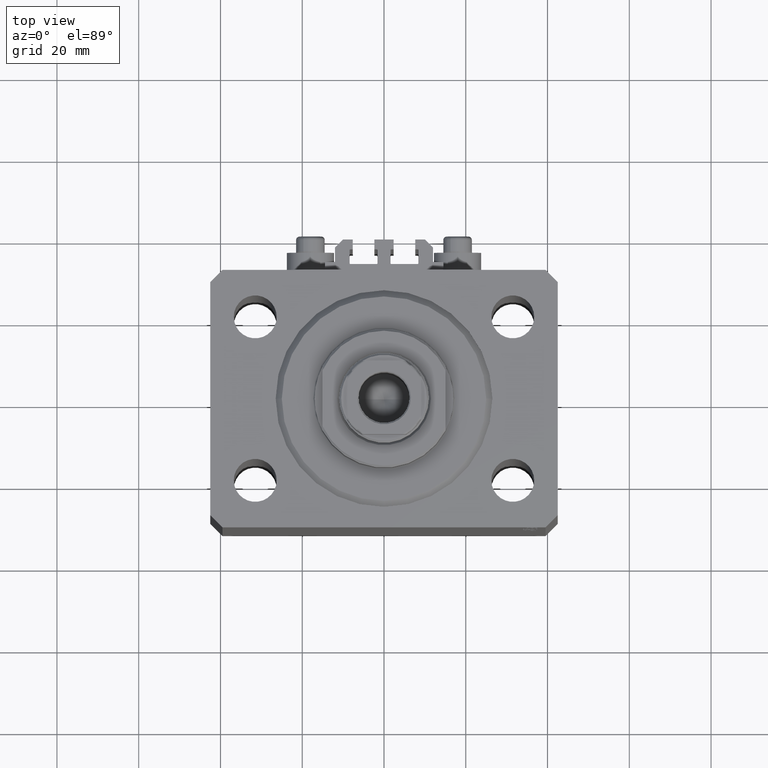
[diagram: clean part render]
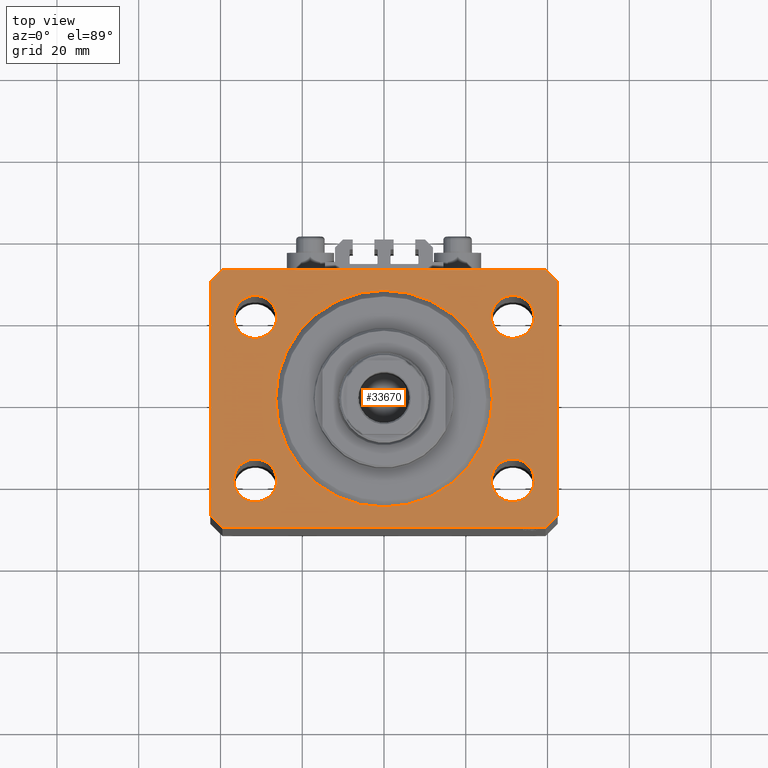
[diagram: same view with one face highlighted and labeled with its STEP entity id]
A machine part, top view. The second image highlights one B-rep face of the part: STEP entity #33670.
In plain terms, the highlighted planar face has unit normal (0, 0, 1).
Its self-contained STEP definition (entity closure, byte-faithful):
#278 = DIRECTION ( 'NONE',  ( 1.000000000000000000, 0.000000000000000000, 0.000000000000000000 ) ) ;
#806 = CARTESIAN_POINT ( 'NONE',  ( -42.50000000000000000, 28.50000000000000000, 0.000000000000000000 ) ) ;
#975 = VERTEX_POINT ( 'NONE', #19209 ) ;
#1369 = EDGE_CURVE ( 'NONE', #34641, #36461, #13922, .T. ) ;
#1422 = VECTOR ( 'NONE', #1911, 1000.000000000000000 ) ;
#1576 = ORIENTED_EDGE ( 'NONE', *, *, #1369, .F. ) ;
#1911 = DIRECTION ( 'NONE',  ( 0.7071067811865471286, -0.7071067811865479058, 0.000000000000000000 ) ) ;
#1950 = CARTESIAN_POINT ( 'NONE',  ( 36.75000000000000000, 19.99999999999999289, 0.000000000000000000 ) ) ;
#2210 = ORIENTED_EDGE ( 'NONE', *, *, #17421, .T. ) ;
#2278 = ORIENTED_EDGE ( 'NONE', *, *, #9374, .F. ) ;
#2352 = LINE ( 'NONE', #39198, #5549 ) ;
#2813 = DIRECTION ( 'NONE',  ( 1.000000000000000000, 0.000000000000000000, 0.000000000000000000 ) ) ;
#2986 = DIRECTION ( 'NONE',  ( 8.886653596232072440E-15, 1.000000000000000000, 0.000000000000000000 ) ) ;
#3289 = CIRCLE ( 'NONE', #32343, 26.50000000000000355 ) ;
#3350 = FACE_BOUND ( 'NONE', #17848, .T. ) ;
#4057 = FACE_BOUND ( 'NONE', #31509, .T. ) ;
#4231 = LINE ( 'NONE', #29612, #37441 ) ;
#4646 = EDGE_CURVE ( 'NONE', #46242, #45824, #39242, .T. ) ;
#4724 = DIRECTION ( 'NONE',  ( 1.000000000000000000, 0.000000000000000000, 0.000000000000000000 ) ) ;
#4790 = EDGE_CURVE ( 'NONE', #38186, #14818, #18075, .T. ) ;
#5080 = EDGE_CURVE ( 'NONE', #27924, #37048, #42216, .T. ) ;
#5549 = VECTOR ( 'NONE', #2813, 1000.000000000000000 ) ;
#6009 = EDGE_CURVE ( 'NONE', #31123, #39874, #2352, .T. ) ;
#6158 = AXIS2_PLACEMENT_3D ( 'NONE', #43815, #30179, #278 ) ;
#6864 = EDGE_CURVE ( 'NONE', #24537, #7575, #3289, .T. ) ;
#7453 = CARTESIAN_POINT ( 'NONE',  ( 31.49999999999999289, -20.00000000000000355, 0.000000000000000000 ) ) ;
#7560 = ORIENTED_EDGE ( 'NONE', *, *, #34549, .F. ) ;
#7575 = VERTEX_POINT ( 'NONE', #11613 ) ;
#7647 = DIRECTION ( 'NONE',  ( 0.000000000000000000, 0.000000000000000000, 1.000000000000000000 ) ) ;
#7697 = CARTESIAN_POINT ( 'NONE',  ( -26.24999999999999289, -20.00000000000000355, 0.000000000000000000 ) ) ;
#8465 = CARTESIAN_POINT ( 'NONE',  ( 42.50000000000000711, -28.50000000000000355, 0.000000000000000000 ) ) ;
#9064 = ORIENTED_EDGE ( 'NONE', *, *, #13726, .T. ) ;
#9244 = CIRCLE ( 'NONE', #11544, 5.249999999999997335 ) ;
#9253 = EDGE_LOOP ( 'NONE', ( #2278, #1576 ) ) ;
#9374 = EDGE_CURVE ( 'NONE', #36461, #34641, #20185, .T. ) ;
#9717 = DIRECTION ( 'NONE',  ( 1.000000000000000000, 0.000000000000000000, 0.000000000000000000 ) ) ;
#10858 = DIRECTION ( 'NONE',  ( 0.7071067811865483499, 0.7071067811865466846, 0.000000000000000000 ) ) ;
#10961 = CARTESIAN_POINT ( 'NONE',  ( 39.50000000000056843, 31.50000000000000000, 0.000000000000000000 ) ) ;
#11250 = PLANE ( 'NONE',  #30397 ) ;
#11544 = AXIS2_PLACEMENT_3D ( 'NONE', #7453, #34014, #36679 ) ;
#11613 = CARTESIAN_POINT ( 'NONE',  ( -26.50000000000000355, 3.245314017740486554E-15, 0.000000000000000000 ) ) ;
#11827 = DIRECTION ( 'NONE',  ( 0.000000000000000000, -1.000000000000000000, 0.000000000000000000 ) ) ;
#12138 = AXIS2_PLACEMENT_3D ( 'NONE', #20282, #37535, #4724 ) ;
#12441 = ORIENTED_EDGE ( 'NONE', *, *, #12953, .T. ) ;
#12953 = EDGE_CURVE ( 'NONE', #14818, #40566, #45949, .T. ) ;
#13726 = EDGE_CURVE ( 'NONE', #40566, #975, #29077, .T. ) ;
#13922 = CIRCLE ( 'NONE', #40674, 5.250000000000000888 ) ;
#14101 = DIRECTION ( 'NONE',  ( 1.000000000000000000, 0.000000000000000000, 0.000000000000000000 ) ) ;
#14818 = VERTEX_POINT ( 'NONE', #42670 ) ;
#15216 = ORIENTED_EDGE ( 'NONE', *, *, #19259, .T. ) ;
#16077 = CIRCLE ( 'NONE', #6158, 5.249999999999997335 ) ;
#16211 = AXIS2_PLACEMENT_3D ( 'NONE', #32303, #46907, #14101 ) ;
#17034 = EDGE_CURVE ( 'NONE', #7575, #24537, #32768, .T. ) ;
#17257 = CARTESIAN_POINT ( 'NONE',  ( -36.75000000000000000, 19.99999999999999645, 0.000000000000000000 ) ) ;
#17284 = CIRCLE ( 'NONE', #44014, 5.250000000000000888 ) ;
#17421 = EDGE_CURVE ( 'NONE', #39874, #20227, #22341, .T. ) ;
#17848 = EDGE_LOOP ( 'NONE', ( #26863, #18890 ) ) ;
#18075 = LINE ( 'NONE', #37931, #18495 ) ;
#18327 = CARTESIAN_POINT ( 'NONE',  ( 39.50000000000000711, -31.50000000000000000, 0.000000000000000000 ) ) ;
#18495 = VECTOR ( 'NONE', #38167, 1000.000000000000000 ) ;
#18890 = ORIENTED_EDGE ( 'NONE', *, *, #17034, .F. ) ;
#18975 = CIRCLE ( 'NONE', #40362, 5.249999999999997335 ) ;
#19156 = CARTESIAN_POINT ( 'NONE',  ( 36.74999999999999289, -20.00000000000000355, 0.000000000000000000 ) ) ;
#19209 = CARTESIAN_POINT ( 'NONE',  ( -42.50000000000000000, -28.50000000000000000, 0.000000000000000000 ) ) ;
#19256 = VERTEX_POINT ( 'NONE', #39369 ) ;
#19259 = EDGE_CURVE ( 'NONE', #20227, #40767, #46082, .T. ) ;
#20185 = CIRCLE ( 'NONE', #25543, 5.250000000000000888 ) ;
#20227 = VERTEX_POINT ( 'NONE', #8465 ) ;
#20282 = CARTESIAN_POINT ( 'NONE',  ( 0.000000000000000000, 0.000000000000000000, 0.000000000000000000 ) ) ;
#20568 = LINE ( 'NONE', #34714, #1422 ) ;
#21592 = ORIENTED_EDGE ( 'NONE', *, *, #26127, .F. ) ;
#21662 = CARTESIAN_POINT ( 'NONE',  ( -36.74999999999999289, -20.00000000000000355, 0.000000000000000000 ) ) ;
#22341 = LINE ( 'NONE', #36248, #41195 ) ;
#24081 = CARTESIAN_POINT ( 'NONE',  ( -31.49999999999999289, -20.00000000000000355, 0.000000000000000000 ) ) ;
#24135 = CARTESIAN_POINT ( 'NONE',  ( 0.000000000000000000, 0.000000000000000000, 0.000000000000000000 ) ) ;
#24367 = ORIENTED_EDGE ( 'NONE', *, *, #6009, .T. ) ;
#24537 = VERTEX_POINT ( 'NONE', #31031 ) ;
#25508 = EDGE_LOOP ( 'NONE', ( #42024, #7560 ) ) ;
#25543 = AXIS2_PLACEMENT_3D ( 'NONE', #26343, #44746, #32820 ) ;
#25592 = EDGE_LOOP ( 'NONE', ( #21592, #31178 ) ) ;
#25840 = FACE_BOUND ( 'NONE', #9253, .T. ) ;
#26127 = EDGE_CURVE ( 'NONE', #45824, #46242, #17284, .T. ) ;
#26343 = CARTESIAN_POINT ( 'NONE',  ( -31.50000000000000000, 19.99999999999999645, 0.000000000000000000 ) ) ;
#26407 = DIRECTION ( 'NONE',  ( -0.7071067811865471286, -0.7071067811865479058, 0.000000000000000000 ) ) ;
#26863 = ORIENTED_EDGE ( 'NONE', *, *, #6864, .F. ) ;
#27563 = DIRECTION ( 'NONE',  ( 1.000000000000000000, 0.000000000000000000, 0.000000000000000000 ) ) ;
#27801 = CARTESIAN_POINT ( 'NONE',  ( 31.50000000000000000, 19.99999999999999289, 0.000000000000000000 ) ) ;
#27924 = VERTEX_POINT ( 'NONE', #29791 ) ;
#28414 = CARTESIAN_POINT ( 'NONE',  ( -42.50000000000000000, 28.50000000000000000, 0.000000000000000000 ) ) ;
#29077 = LINE ( 'NONE', #806, #47156 ) ;
#29612 = CARTESIAN_POINT ( 'NONE',  ( 42.50000000000051870, 28.49999999999995381, 0.000000000000000000 ) ) ;
#29669 = FACE_BOUND ( 'NONE', #25508, .T. ) ;
#29791 = CARTESIAN_POINT ( 'NONE',  ( 26.24999999999999645, -20.00000000000000355, 0.000000000000000000 ) ) ;
#30109 = CARTESIAN_POINT ( 'NONE',  ( -26.25000000000000000, 19.99999999999999645, 0.000000000000000000 ) ) ;
#30179 = DIRECTION ( 'NONE',  ( 0.000000000000000000, 0.000000000000000000, 1.000000000000000000 ) ) ;
#30397 = AXIS2_PLACEMENT_3D ( 'NONE', #40437, #7647, #44244 ) ;
#31031 = CARTESIAN_POINT ( 'NONE',  ( 26.50000000000000355, 0.000000000000000000, 0.000000000000000000 ) ) ;
#31123 = VERTEX_POINT ( 'NONE', #32816 ) ;
#31178 = ORIENTED_EDGE ( 'NONE', *, *, #4646, .F. ) ;
#31509 = EDGE_LOOP ( 'NONE', ( #40829, #39900 ) ) ;
#32303 = CARTESIAN_POINT ( 'NONE',  ( 31.49999999999999289, -20.00000000000000355, 0.000000000000000000 ) ) ;
#32343 = AXIS2_PLACEMENT_3D ( 'NONE', #24135, #38519, #38739 ) ;
#32692 = CARTESIAN_POINT ( 'NONE',  ( -31.50000000000000000, 19.99999999999999645, 0.000000000000000000 ) ) ;
#32768 = CIRCLE ( 'NONE', #12138, 26.50000000000000355 ) ;
#32816 = CARTESIAN_POINT ( 'NONE',  ( -39.50000000000000711, -31.50000000000000000, 0.000000000000000000 ) ) ;
#32820 = DIRECTION ( 'NONE',  ( 1.000000000000000000, 0.000000000000000000, 0.000000000000000000 ) ) ;
#33670 = ADVANCED_FACE ( 'NONE', ( #3350, #44008, #4057, #29669, #25840, #39968 ), #11250, .T. ) ;
#34014 = DIRECTION ( 'NONE',  ( 0.000000000000000000, 0.000000000000000000, 1.000000000000000000 ) ) ;
#34549 = EDGE_CURVE ( 'NONE', #19256, #46629, #18975, .T. ) ;
#34573 = AXIS2_PLACEMENT_3D ( 'NONE', #24081, #38687, #9717 ) ;
#34641 = VERTEX_POINT ( 'NONE', #17257 ) ;
#34714 = CARTESIAN_POINT ( 'NONE',  ( -42.50000000000000000, -28.50000000000000000, 0.000000000000000000 ) ) ;
#34851 = CARTESIAN_POINT ( 'NONE',  ( 42.50000000000000711, -28.50000000000000355, 0.000000000000000000 ) ) ;
#35007 = DIRECTION ( 'NONE',  ( 1.000000000000000000, 0.000000000000000000, 0.000000000000000000 ) ) ;
#36248 = CARTESIAN_POINT ( 'NONE',  ( 39.50000000000000711, -31.50000000000000000, 0.000000000000000000 ) ) ;
#36327 = EDGE_CURVE ( 'NONE', #975, #31123, #20568, .T. ) ;
#36461 = VERTEX_POINT ( 'NONE', #30109 ) ;
#36679 = DIRECTION ( 'NONE',  ( 1.000000000000000000, 0.000000000000000000, 0.000000000000000000 ) ) ;
#37048 = VERTEX_POINT ( 'NONE', #19156 ) ;
#37441 = VECTOR ( 'NONE', #40613, 1000.000000000000114 ) ;
#37535 = DIRECTION ( 'NONE',  ( 0.000000000000000000, 0.000000000000000000, 1.000000000000000000 ) ) ;
#37882 = DIRECTION ( 'NONE',  ( 0.000000000000000000, 0.000000000000000000, 1.000000000000000000 ) ) ;
#37931 = CARTESIAN_POINT ( 'NONE',  ( 39.50000000000056843, 31.50000000000000000, 0.000000000000000000 ) ) ;
#38117 = CARTESIAN_POINT ( 'NONE',  ( -31.49999999999999289, -20.00000000000000355, 0.000000000000000000 ) ) ;
#38137 = EDGE_LOOP ( 'NONE', ( #46731, #12441, #9064, #41215, #24367, #2210, #15216, #41476 ) ) ;
#38167 = DIRECTION ( 'NONE',  ( -1.000000000000000000, 0.000000000000000000, 0.000000000000000000 ) ) ;
#38186 = VERTEX_POINT ( 'NONE', #10961 ) ;
#38230 = EDGE_CURVE ( 'NONE', #40767, #38186, #4231, .T. ) ;
#38519 = DIRECTION ( 'NONE',  ( 0.000000000000000000, 0.000000000000000000, 1.000000000000000000 ) ) ;
#38687 = DIRECTION ( 'NONE',  ( 0.000000000000000000, 0.000000000000000000, 1.000000000000000000 ) ) ;
#38739 = DIRECTION ( 'NONE',  ( 1.000000000000000000, 0.000000000000000000, 0.000000000000000000 ) ) ;
#38891 = CARTESIAN_POINT ( 'NONE',  ( 42.50000000000051870, 28.49999999999995381, 0.000000000000000000 ) ) ;
#39198 = CARTESIAN_POINT ( 'NONE',  ( -39.50000000000000711, -31.50000000000000000, 0.000000000000000000 ) ) ;
#39242 = CIRCLE ( 'NONE', #34573, 5.250000000000000888 ) ;
#39369 = CARTESIAN_POINT ( 'NONE',  ( 26.25000000000000355, 19.99999999999999289, 0.000000000000000000 ) ) ;
#39466 = VECTOR ( 'NONE', #26407, 1000.000000000000000 ) ;
#39874 = VERTEX_POINT ( 'NONE', #18327 ) ;
#39900 = ORIENTED_EDGE ( 'NONE', *, *, #5080, .F. ) ;
#39968 = FACE_OUTER_BOUND ( 'NONE', #38137, .T. ) ;
#40362 = AXIS2_PLACEMENT_3D ( 'NONE', #27801, #41919, #27563 ) ;
#40437 = CARTESIAN_POINT ( 'NONE',  ( 0.000000000000000000, 0.000000000000000000, 0.000000000000000000 ) ) ;
#40566 = VERTEX_POINT ( 'NONE', #28414 ) ;
#40613 = DIRECTION ( 'NONE',  ( -0.7071067811865356934, 0.7071067811865594521, 0.000000000000000000 ) ) ;
#40674 = AXIS2_PLACEMENT_3D ( 'NONE', #32692, #46346, #46830 ) ;
#40767 = VERTEX_POINT ( 'NONE', #38891 ) ;
#40829 = ORIENTED_EDGE ( 'NONE', *, *, #42254, .F. ) ;
#41195 = VECTOR ( 'NONE', #10858, 1000.000000000000000 ) ;
#41214 = EDGE_CURVE ( 'NONE', #46629, #19256, #16077, .T. ) ;
#41215 = ORIENTED_EDGE ( 'NONE', *, *, #36327, .T. ) ;
#41476 = ORIENTED_EDGE ( 'NONE', *, *, #38230, .T. ) ;
#41919 = DIRECTION ( 'NONE',  ( 0.000000000000000000, 0.000000000000000000, 1.000000000000000000 ) ) ;
#42024 = ORIENTED_EDGE ( 'NONE', *, *, #41214, .F. ) ;
#42035 = VECTOR ( 'NONE', #2986, 1000.000000000000000 ) ;
#42216 = CIRCLE ( 'NONE', #16211, 5.249999999999997335 ) ;
#42254 = EDGE_CURVE ( 'NONE', #37048, #27924, #9244, .T. ) ;
#42670 = CARTESIAN_POINT ( 'NONE',  ( -39.50000000000000711, 31.50000000000000000, 0.000000000000000000 ) ) ;
#43815 = CARTESIAN_POINT ( 'NONE',  ( 31.50000000000000000, 19.99999999999999289, 0.000000000000000000 ) ) ;
#44008 = FACE_BOUND ( 'NONE', #25592, .T. ) ;
#44014 = AXIS2_PLACEMENT_3D ( 'NONE', #38117, #37882, #35007 ) ;
#44244 = DIRECTION ( 'NONE',  ( 1.000000000000000000, 0.000000000000000000, -0.000000000000000000 ) ) ;
#44746 = DIRECTION ( 'NONE',  ( 0.000000000000000000, 0.000000000000000000, 1.000000000000000000 ) ) ;
#44814 = CARTESIAN_POINT ( 'NONE',  ( -39.50000000000000711, 31.50000000000000000, 0.000000000000000000 ) ) ;
#45824 = VERTEX_POINT ( 'NONE', #7697 ) ;
#45949 = LINE ( 'NONE', #44814, #39466 ) ;
#46082 = LINE ( 'NONE', #34851, #42035 ) ;
#46242 = VERTEX_POINT ( 'NONE', #21662 ) ;
#46346 = DIRECTION ( 'NONE',  ( 0.000000000000000000, 0.000000000000000000, 1.000000000000000000 ) ) ;
#46629 = VERTEX_POINT ( 'NONE', #1950 ) ;
#46731 = ORIENTED_EDGE ( 'NONE', *, *, #4790, .T. ) ;
#46830 = DIRECTION ( 'NONE',  ( 1.000000000000000000, 0.000000000000000000, 0.000000000000000000 ) ) ;
#46907 = DIRECTION ( 'NONE',  ( 0.000000000000000000, 0.000000000000000000, 1.000000000000000000 ) ) ;
#47156 = VECTOR ( 'NONE', #11827, 1000.000000000000000 ) ;